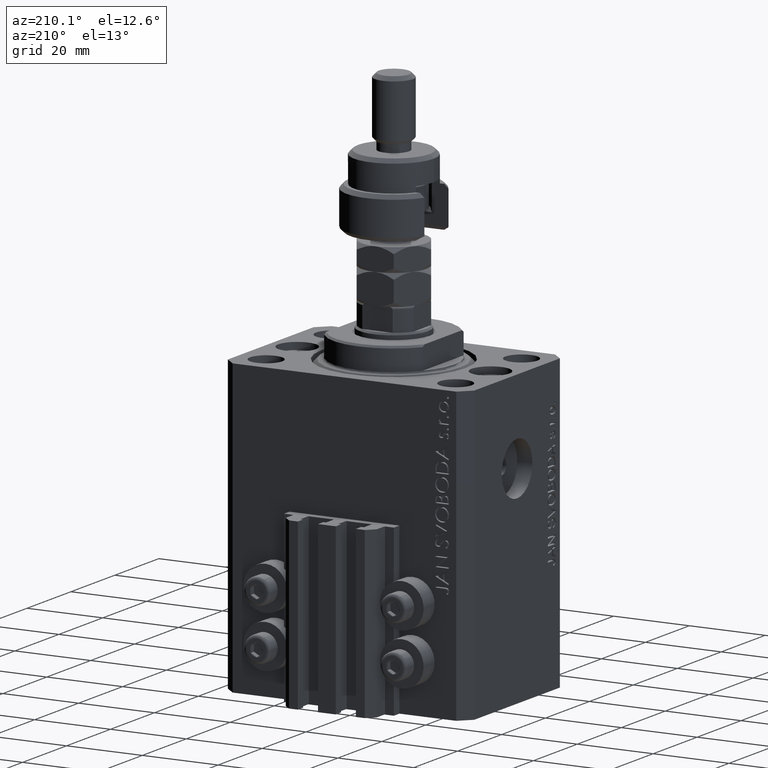
[diagram: clean part render]
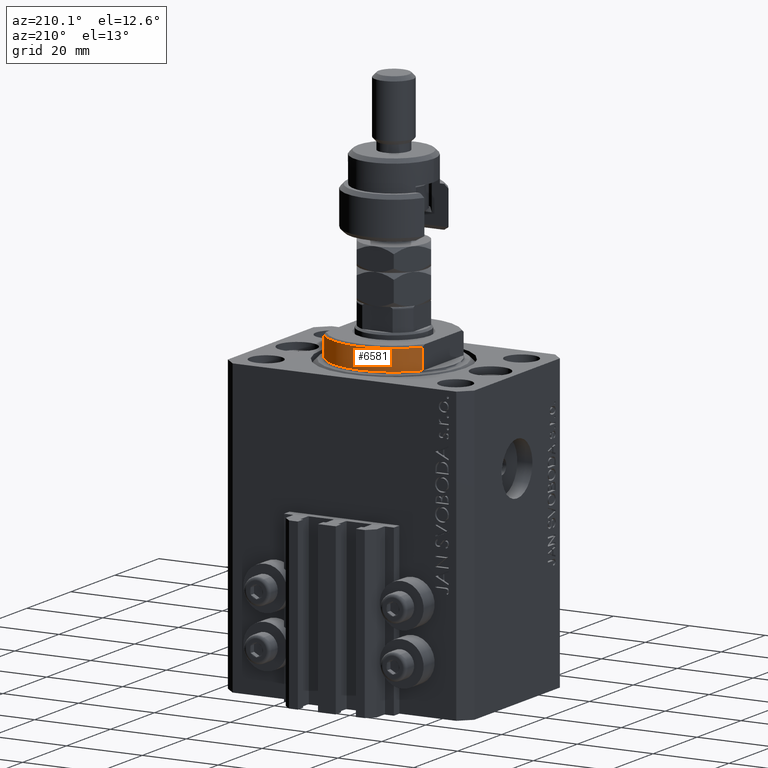
[diagram: same view with one face highlighted and labeled with its STEP entity id]
A machine part, auxiliary view. The second image highlights one B-rep face of the part: STEP entity #6581.
In plain terms, the highlighted cylindrical surface (partial cylindrical patch) has radius 16 mm, axis along (0, 0, -1).
Its self-contained STEP definition (entity closure, byte-faithful):
#1386 = DIRECTION ( 'NONE',  ( -0.000000000000000000, -0.000000000000000000, 1.000000000000000000 ) ) ;
#2901 = EDGE_LOOP ( 'NONE', ( #49968, #13758, #29395, #42223 ) ) ;
#3443 = VECTOR ( 'NONE', #1386, 1000.000000000000000 ) ;
#6581 = ADVANCED_FACE ( 'NONE', ( #22664 ), #37614, .T. ) ;
#6764 = EDGE_CURVE ( 'NONE', #46751, #15669, #36598, .T. ) ;
#9202 = CIRCLE ( 'NONE', #31767, 16.00000000000000000 ) ;
#10903 = VECTOR ( 'NONE', #19475, 1000.000000000000000 ) ;
#11067 = CARTESIAN_POINT ( 'NONE',  ( 0.000000000000000000, 0.000000000000000000, -6.500000000000000000 ) ) ;
#12209 = CARTESIAN_POINT ( 'NONE',  ( 13.00000000000000000, 9.327379053088815652, -0.4999999999999995559 ) ) ;
#13094 = CARTESIAN_POINT ( 'NONE',  ( -13.00000000000000000, 9.327379053088815652, -0.4999999999999995559 ) ) ;
#13758 = ORIENTED_EDGE ( 'NONE', *, *, #6764, .T. ) ;
#13900 = VERTEX_POINT ( 'NONE', #12209 ) ;
#14136 = CARTESIAN_POINT ( 'NONE',  ( -13.00000000000000000, 9.327379053088916905, -6.000000000000014211 ) ) ;
#15669 = VERTEX_POINT ( 'NONE', #14136 ) ;
#15694 = CARTESIAN_POINT ( 'NONE',  ( -13.00000000000000000, 9.327379053088813876, -6.500000000000000000 ) ) ;
#16363 = DIRECTION ( 'NONE',  ( -0.000000000000000000, -0.000000000000000000, -1.000000000000000000 ) ) ;
#19475 = DIRECTION ( 'NONE',  ( -0.000000000000000000, -0.000000000000000000, 1.000000000000000000 ) ) ;
#21060 = LINE ( 'NONE', #32958, #3443 ) ;
#22664 = FACE_OUTER_BOUND ( 'NONE', #2901, .T. ) ;
#24398 = DIRECTION ( 'NONE',  ( 0.000000000000000000, 0.000000000000000000, 1.000000000000000000 ) ) ;
#27435 = CARTESIAN_POINT ( 'NONE',  ( 0.000000000000000000, 0.000000000000000000, -6.000000000000023981 ) ) ;
#28499 = AXIS2_PLACEMENT_3D ( 'NONE', #27435, #24398, #39829 ) ;
#29331 = EDGE_CURVE ( 'NONE', #15669, #47884, #41755, .T. ) ;
#29395 = ORIENTED_EDGE ( 'NONE', *, *, #29331, .T. ) ;
#31039 = CARTESIAN_POINT ( 'NONE',  ( 0.000000000000000000, 0.000000000000000000, -0.4999999999999995559 ) ) ;
#31767 = AXIS2_PLACEMENT_3D ( 'NONE', #31039, #16363, #42664 ) ;
#32958 = CARTESIAN_POINT ( 'NONE',  ( 13.00000000000000000, 9.327379053088813876, -6.500000000000000000 ) ) ;
#33851 = EDGE_CURVE ( 'NONE', #47884, #13900, #9202, .T. ) ;
#36598 = CIRCLE ( 'NONE', #28499, 16.00000000000000000 ) ;
#37614 = CYLINDRICAL_SURFACE ( 'NONE', #45474, 16.00000000000000000 ) ;
#37860 = DIRECTION ( 'NONE',  ( 1.000000000000000000, 0.000000000000000000, 0.000000000000000000 ) ) ;
#39829 = DIRECTION ( 'NONE',  ( -1.000000000000000000, 0.000000000000000000, 0.000000000000000000 ) ) ;
#41755 = LINE ( 'NONE', #15694, #10903 ) ;
#41893 = DIRECTION ( 'NONE',  ( -0.000000000000000000, -0.000000000000000000, 1.000000000000000000 ) ) ;
#42223 = ORIENTED_EDGE ( 'NONE', *, *, #33851, .T. ) ;
#42664 = DIRECTION ( 'NONE',  ( 1.000000000000000000, -8.881784197001252323E-16, 0.000000000000000000 ) ) ;
#45474 = AXIS2_PLACEMENT_3D ( 'NONE', #11067, #41893, #37860 ) ;
#45711 = EDGE_CURVE ( 'NONE', #46751, #13900, #21060, .T. ) ;
#46751 = VERTEX_POINT ( 'NONE', #48246 ) ;
#47884 = VERTEX_POINT ( 'NONE', #13094 ) ;
#48246 = CARTESIAN_POINT ( 'NONE',  ( 13.00000000000000000, 9.327379053088916905, -6.000000000000014211 ) ) ;
#49968 = ORIENTED_EDGE ( 'NONE', *, *, #45711, .F. ) ;